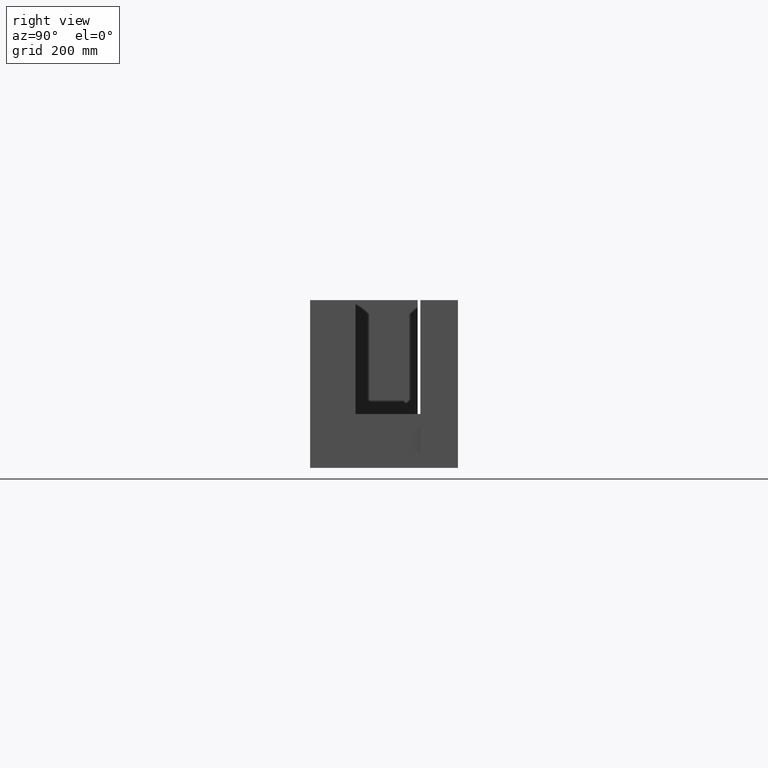
[diagram: clean part render]
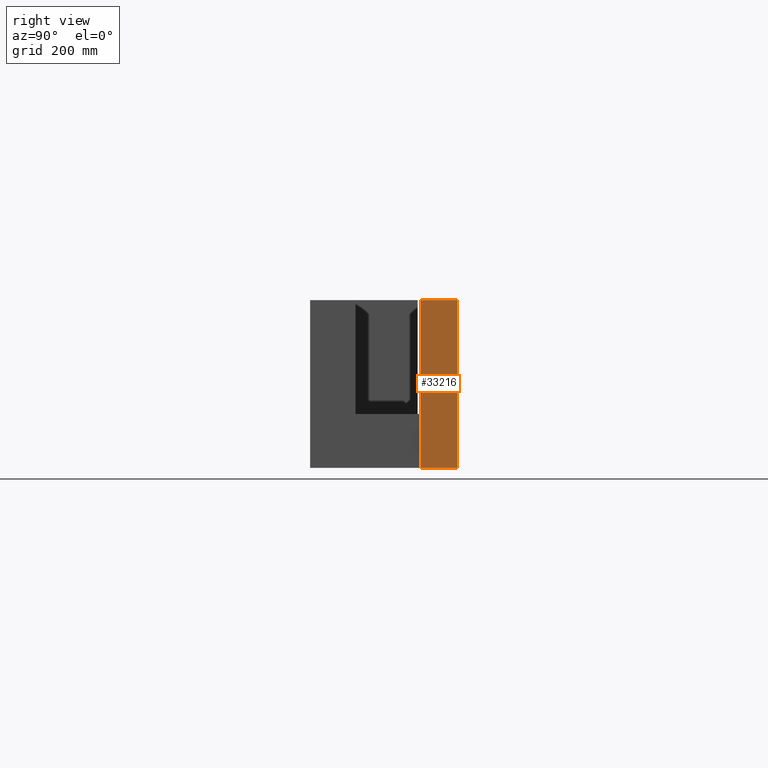
[diagram: same view with one face highlighted and labeled with its STEP entity id]
A machine part, right view. The second image highlights one B-rep face of the part: STEP entity #33216.
In plain terms, the highlighted planar face has unit normal (-1, 0, 0).
Its self-contained STEP definition (entity closure, byte-faithful):
#908 = VECTOR ( 'NONE', #33688, 1000.000000000000000 ) ;
#1037 = LINE ( 'NONE', #12061, #19348 ) ;
#3181 = DIRECTION ( 'NONE',  ( -0.0000000000000000000, -0.0000000000000000000, -1.000000000000000000 ) ) ;
#3513 = VECTOR ( 'NONE', #3181, 1000.000000000000000 ) ;
#5756 = CARTESIAN_POINT ( 'NONE',  ( 1949.999999999999545, 413.0000000000000000, -1.110223024625156540E-13 ) ) ;
#7809 = VECTOR ( 'NONE', #31833, 1000.000000000000000 ) ;
#7835 = EDGE_CURVE ( 'NONE', #26023, #24072, #9913, .T. ) ;
#9913 = LINE ( 'NONE', #20905, #7809 ) ;
#10025 = VERTEX_POINT ( 'NONE', #24499 ) ;
#11003 = EDGE_CURVE ( 'NONE', #10025, #13461, #1037, .T. ) ;
#11056 = ORIENTED_EDGE ( 'NONE', *, *, #7835, .T. ) ;
#11815 = LINE ( 'NONE', #22799, #908 ) ;
#12061 = CARTESIAN_POINT ( 'NONE',  ( 1949.999999999999545, 413.0000000000000000, -470.0000000000000000 ) ) ;
#12393 = CARTESIAN_POINT ( 'NONE',  ( 1949.999999999999545, 308.0000000000000000, -1.110223024625156540E-13 ) ) ;
#12856 = CARTESIAN_POINT ( 'NONE',  ( 1949.999999999999545, 412.0000000000000000, -1.110223024625156540E-13 ) ) ;
#13461 = VERTEX_POINT ( 'NONE', #16842 ) ;
#16760 = DIRECTION ( 'NONE',  ( -1.000000000000000000, 0.0000000000000000000, 0.0000000000000000000 ) ) ;
#16842 = CARTESIAN_POINT ( 'NONE',  ( 1949.999999999999545, 308.0000000000000000, -470.0000000000000000 ) ) ;
#16911 = LINE ( 'NONE', #27899, #3513 ) ;
#19348 = VECTOR ( 'NONE', #23033, 1000.000000000000000 ) ;
#19483 = FACE_OUTER_BOUND ( 'NONE', #29101, .T. ) ;
#20905 = CARTESIAN_POINT ( 'NONE',  ( 1949.999999999999545, 413.0000000000000000, -1.110223024625156540E-13 ) ) ;
#22799 = CARTESIAN_POINT ( 'NONE',  ( 1949.999999999999545, 308.0000000000000000, -1.110223024625156540E-13 ) ) ;
#23023 = EDGE_CURVE ( 'NONE', #26023, #10025, #16911, .T. ) ;
#23033 = DIRECTION ( 'NONE',  ( 0.0000000000000000000, -1.000000000000000000, -0.0000000000000000000 ) ) ;
#24072 = VERTEX_POINT ( 'NONE', #12393 ) ;
#24499 = CARTESIAN_POINT ( 'NONE',  ( 1949.999999999999545, 412.0000000000000000, -470.0000000000000000 ) ) ;
#26023 = VERTEX_POINT ( 'NONE', #12856 ) ;
#27750 = DIRECTION ( 'NONE',  ( 0.0000000000000000000, 0.0000000000000000000, -1.000000000000000000 ) ) ;
#27899 = CARTESIAN_POINT ( 'NONE',  ( 1949.999999999999545, 412.0000000000000000, -1.110223024625156540E-13 ) ) ;
#29101 = EDGE_LOOP ( 'NONE', ( #11056, #30121, #35237, #32417 ) ) ;
#30121 = ORIENTED_EDGE ( 'NONE', *, *, #30533, .F. ) ;
#30427 = PLANE ( 'NONE',  #33154 ) ;
#30533 = EDGE_CURVE ( 'NONE', #13461, #24072, #11815, .T. ) ;
#31833 = DIRECTION ( 'NONE',  ( 0.0000000000000000000, -1.000000000000000000, -0.0000000000000000000 ) ) ;
#32417 = ORIENTED_EDGE ( 'NONE', *, *, #23023, .F. ) ;
#33154 = AXIS2_PLACEMENT_3D ( 'NONE', #5756, #16760, #27750 ) ;
#33216 = ADVANCED_FACE ( 'NONE', ( #19483 ), #30427, .F. ) ;
#33688 = DIRECTION ( 'NONE',  ( 0.0000000000000000000, 0.0000000000000000000, 1.000000000000000000 ) ) ;
#35237 = ORIENTED_EDGE ( 'NONE', *, *, #11003, .F. ) ;